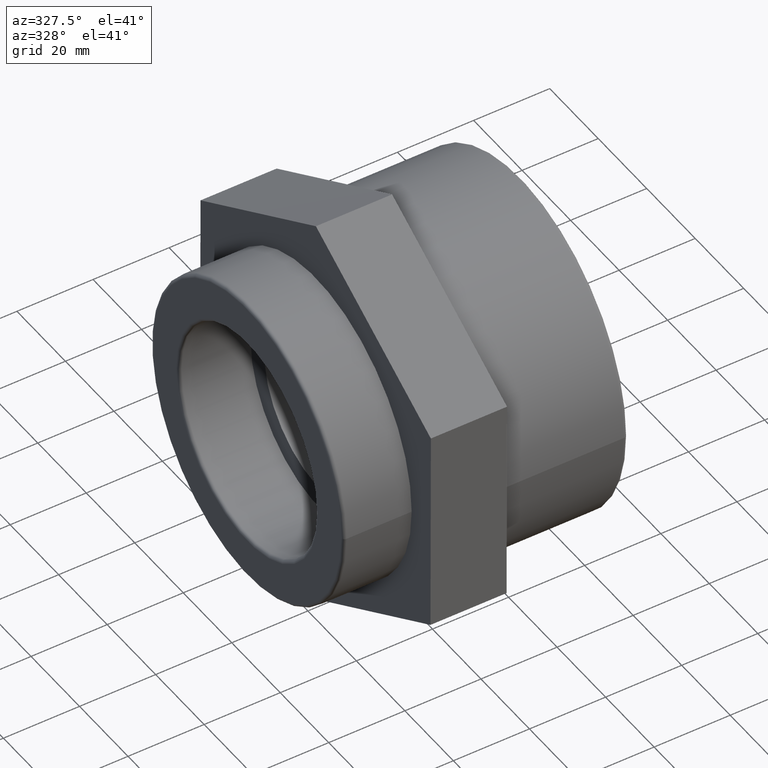
[diagram: clean part render]
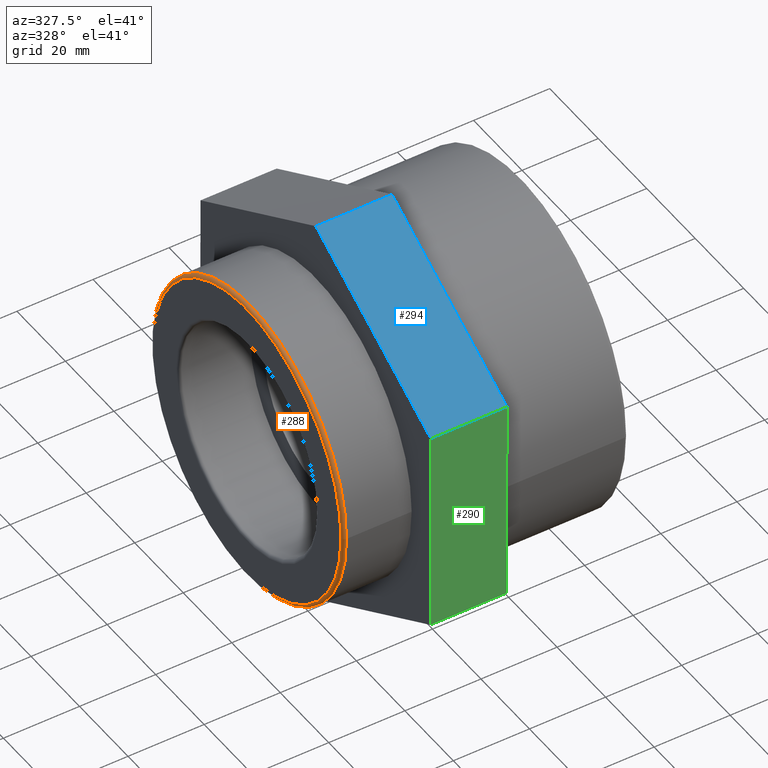
[diagram: same view with three faces highlighted in distinct colors, each labeled with its STEP entity id]
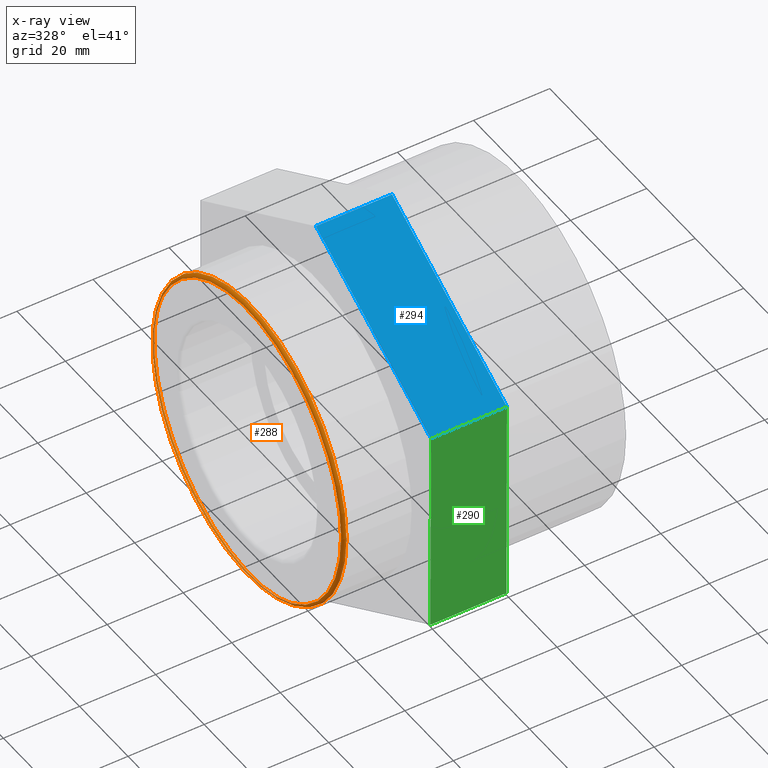
[diagram: x-ray of the same camera — body ghosted, the three highlighted faces saturated]
A machine part, auxiliary view with three faces highlighted in distinct colors.
The next image is the same camera in x-ray (body ghosted, the three faces saturated) — at least one of them is partly hidden behind the body in this view.
Their STEP definitions:

[orange] entity #288 — the highlighted toroidal blend (fillet) surface has major radius 38.7804 mm and minor (blend) radius 0.8788 mm.
#76=FACE_BOUND('',#121,.T.);
#91=FACE_OUTER_BOUND('',#120,.T.);
#120=EDGE_LOOP('',(#228));
#121=EDGE_LOOP('',(#229));
#148=CIRCLE('',#318,38.78036);
#150=CIRCLE('',#322,39.6592);
#162=VERTEX_POINT('',#452);
#164=VERTEX_POINT('',#458);
#188=EDGE_CURVE('',#162,#162,#148,.T.);
#190=EDGE_CURVE('',#164,#164,#150,.T.);
#228=ORIENTED_EDGE('',*,*,#190,.T.);
#229=ORIENTED_EDGE('',*,*,#188,.T.);
#279=TOROIDAL_SURFACE('',#321,38.78036,0.87884);
#288=ADVANCED_FACE('',(#91,#76),#279,.T.);
#318=AXIS2_PLACEMENT_3D('',#453,#370,#371);
#321=AXIS2_PLACEMENT_3D('',#457,#376,#377);
#322=AXIS2_PLACEMENT_3D('',#459,#378,#379);
#370=DIRECTION('center_axis',(1.,1.83697019872103E-16,0.));
#371=DIRECTION('ref_axis',(-1.83697019872103E-16,1.,6.12323399573677E-17));
#376=DIRECTION('center_axis',(-1.,-1.83697019872103E-16,0.));
#377=DIRECTION('ref_axis',(0.,0.,1.));
#378=DIRECTION('center_axis',(-1.,-1.83697019872103E-16,0.));
#379=DIRECTION('ref_axis',(-1.81961553941167E-16,1.,6.12323399573677E-17));
#452=CARTESIAN_POINT('',(-36.,-38.78036,-7.12383656156731E-15));
#453=CARTESIAN_POINT('Origin',(-36.,-1.75644810928116E-30,0.));
#457=CARTESIAN_POINT('Origin',(-35.12116,1.61440288944397E-16,0.));
#458=CARTESIAN_POINT('',(-35.12116,-39.6592,2.42842561683724E-15));
#459=CARTESIAN_POINT('Origin',(-35.12116,1.61440288944397E-16,0.));

[blue] entity #294 — the highlighted planar face has unit normal (0, -0.5026, 0.8645).
#18=LINE('',#471,#36);
#26=LINE('',#489,#44);
#29=LINE('',#494,#47);
#30=LINE('',#495,#48);
#36=VECTOR('',#389,20.);
#44=VECTOR('',#403,20.);
#47=VECTOR('',#408,54.8482755730144);
#48=VECTOR('',#409,54.8482755730144);
#62=PLANE('',#329);
#97=FACE_OUTER_BOUND('',#128,.T.);
#128=EDGE_LOOP('',(#248,#249,#250,#251));
#166=VERTEX_POINT('',#464);
#169=VERTEX_POINT('',#469);
#175=VERTEX_POINT('',#486);
#176=VERTEX_POINT('',#488);
#195=EDGE_CURVE('',#169,#166,#18,.T.);
#203=EDGE_CURVE('',#176,#175,#26,.T.);
#206=EDGE_CURVE('',#175,#166,#29,.T.);
#207=EDGE_CURVE('',#169,#176,#30,.T.);
#248=ORIENTED_EDGE('',*,*,#206,.T.);
#249=ORIENTED_EDGE('',*,*,#195,.F.);
#250=ORIENTED_EDGE('',*,*,#207,.T.);
#251=ORIENTED_EDGE('',*,*,#203,.T.);
#294=ADVANCED_FACE('',(#97),#62,.T.);
#329=AXIS2_PLACEMENT_3D('',#493,#406,#407);
#389=DIRECTION('',(-1.,-2.96059473233373E-16,0.));
#403=DIRECTION('',(-1.,-2.96059473233373E-16,0.));
#406=DIRECTION('center_axis',(1.48788843870226E-16,-0.50256403635813,0.864539987137335));
#407=DIRECTION('ref_axis',(-1.77635683940025E-16,0.864539987137335,0.502564036358131));
#408=DIRECTION('',(1.58813419197395E-16,-0.864539987137335,-0.50256403635813));
#409=DIRECTION('',(-1.58813419197395E-16,0.864539987137335,0.50256403635813));
#464=CARTESIAN_POINT('',(-18.,-47.5810554562106,27.2832640093948));
#469=CARTESIAN_POINT('',(2.00000000000002,-47.5810554562106,27.2832640093948));
#471=CARTESIAN_POINT('',(2.00000000000002,-47.5810554562106,27.2832640093948));
#486=CARTESIAN_POINT('',(-18.,-0.162527997811725,54.848034768652));
#488=CARTESIAN_POINT('',(2.00000000000001,-0.162527997811719,54.848034768652));
#489=CARTESIAN_POINT('',(2.00000000000001,-0.162527997811719,54.848034768652));
#493=CARTESIAN_POINT('Origin',(2.00000000000002,-47.5810554562106,27.2832640093948));
#494=CARTESIAN_POINT('',(-18.,-35.7264235916109,34.1744566992091));
#495=CARTESIAN_POINT('',(2.00000000000002,-47.5810554562106,27.2832640093948));

[green] entity #290 — the highlighted planar face has unit normal (0, -1, -0.003).
#15=LINE('',#466,#33);
#16=LINE('',#468,#34);
#17=LINE('',#470,#35);
#18=LINE('',#471,#36);
#33=VECTOR('',#386,54.8482755730144);
#34=VECTOR('',#387,20.);
#35=VECTOR('',#388,54.8482755730144);
#36=VECTOR('',#389,20.);
#58=PLANE('',#325);
#93=FACE_OUTER_BOUND('',#124,.T.);
#124=EDGE_LOOP('',(#232,#233,#234,#235));
#166=VERTEX_POINT('',#464);
#167=VERTEX_POINT('',#465);
#168=VERTEX_POINT('',#467);
#169=VERTEX_POINT('',#469);
#192=EDGE_CURVE('',#166,#167,#15,.T.);
#193=EDGE_CURVE('',#168,#167,#16,.T.);
#194=EDGE_CURVE('',#168,#169,#17,.T.);
#195=EDGE_CURVE('',#169,#166,#18,.T.);
#232=ORIENTED_EDGE('',*,*,#192,.T.);
#233=ORIENTED_EDGE('',*,*,#193,.F.);
#234=ORIENTED_EDGE('',*,*,#194,.T.);
#235=ORIENTED_EDGE('',*,*,#195,.T.);
#290=ADVANCED_FACE('',(#93),#58,.T.);
#325=AXIS2_PLACEMENT_3D('',#463,#384,#385);
#384=DIRECTION('center_axis',(2.96058173421994E-16,-0.999995609627469,-0.0029632289459195));
#385=DIRECTION('ref_axis',(0.,-0.00296322894591938,0.999995609627469));
#386=DIRECTION('',(-5.44336326564165E-19,0.0029632289459195,-0.999995609627469));
#387=DIRECTION('',(-1.,-2.96059473233373E-16,0.));
#388=DIRECTION('',(5.44336326564165E-19,-0.0029632289459195,0.999995609627469));
#389=DIRECTION('',(-1.,-2.96059473233373E-16,0.));
#463=CARTESIAN_POINT('Origin',(2.00000000000002,-47.4185274583989,-27.5647707592571));
#464=CARTESIAN_POINT('',(-18.,-47.5810554562106,27.2832640093948));
#465=CARTESIAN_POINT('',(-18.,-47.4185274583989,-27.5647707592571));
#466=CARTESIAN_POINT('',(-18.,-47.4591594578519,-13.8527620670942));
#467=CARTESIAN_POINT('',(2.00000000000002,-47.4185274583989,-27.5647707592571));
#468=CARTESIAN_POINT('',(2.00000000000002,-47.4185274583989,-27.5647707592571));
#469=CARTESIAN_POINT('',(2.00000000000002,-47.5810554562106,27.2832640093948));
#470=CARTESIAN_POINT('',(2.00000000000002,-47.4185274583989,-27.5647707592571));
#471=CARTESIAN_POINT('',(2.00000000000002,-47.5810554562106,27.2832640093948));